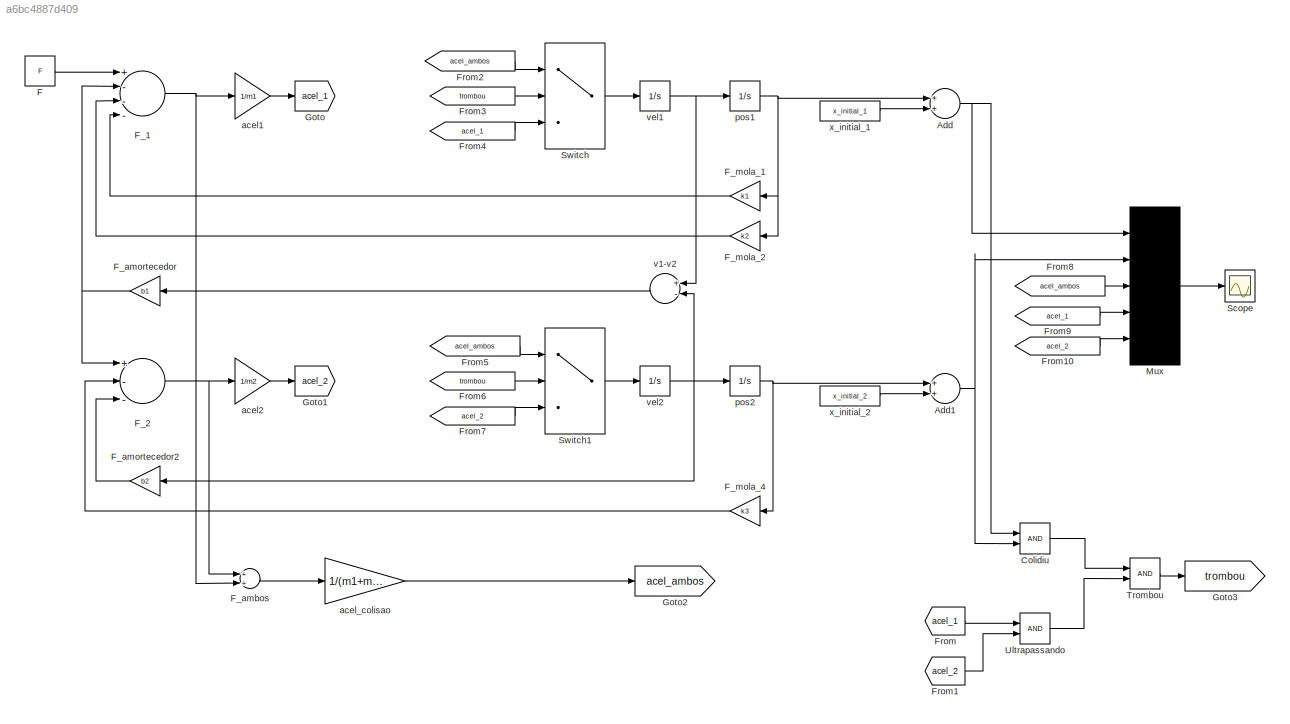
MODEL slx_a6bc4887d409
KIND model
BLOCK [Sum] Add
  InputSameDT = off
  OutDataTypeStr = Inherit: Inherit via internal rule
  Ports = [2, 1]
  SaturateOnIntegerOverflow = off
BLOCK [Sum] Add1
  InputSameDT = off
  OutDataTypeStr = Inherit: Inherit via internal rule
  Ports = [2, 1]
  SaturateOnIntegerOverflow = off
BLOCK [RelationalOperator] Colidiu
  InputSameDT = off
  OutDataTypeStr = boolean
  Ports = [2, 1]
BLOCK [Constant] F
  Value = F
BLOCK [Sum] F_1
  InputSameDT = off
  Inputs = +---
  OutDataTypeStr = Inherit: Inherit via internal rule
  Ports = [4, 1]
  SaturateOnIntegerOverflow = off
BLOCK [Sum] F_2
  InputSameDT = off
  Inputs = +--
  OutDataTypeStr = Inherit: Inherit via internal rule
  Ports = [3, 1]
  SaturateOnIntegerOverflow = off
BLOCK [Sum] F_ambos
  InputSameDT = off
  OutDataTypeStr = Inherit: Inherit via internal rule
  Ports = [2, 1]
  SaturateOnIntegerOverflow = off
BLOCK [Gain] F_amortecedor
  Gain = b1
  OutDataTypeStr = Inherit: Inherit via internal rule
  ParamDataTypeStr = Inherit: Inherit via internal rule
  SaturateOnIntegerOverflow = off
BLOCK [Gain] F_amortecedor2
  Gain = b2
  OutDataTypeStr = Inherit: Inherit via internal rule
  ParamDataTypeStr = Inherit: Inherit via internal rule
  SaturateOnIntegerOverflow = off
BLOCK [Gain] F_mola_1
  Gain = k1
  OutDataTypeStr = Inherit: Inherit via internal rule
  ParamDataTypeStr = Inherit: Inherit via internal rule
  SaturateOnIntegerOverflow = off
BLOCK [Gain] F_mola_2
  Gain = k2
  OutDataTypeStr = Inherit: Inherit via internal rule
  ParamDataTypeStr = Inherit: Inherit via internal rule
  SaturateOnIntegerOverflow = off
BLOCK [Gain] F_mola_4
  Gain = k3
  OutDataTypeStr = Inherit: Inherit via internal rule
  ParamDataTypeStr = Inherit: Inherit via internal rule
  SaturateOnIntegerOverflow = off
BLOCK [From] From
  GotoTag = acel_1
BLOCK [From] From1
  GotoTag = acel_2
BLOCK [From] From10
  GotoTag = acel_2
BLOCK [From] From2
  GotoTag = acel_ambos
BLOCK [From] From3
  GotoTag = trombou
BLOCK [From] From4
  GotoTag = acel_1
BLOCK [From] From5
  GotoTag = acel_ambos
BLOCK [From] From6
  GotoTag = trombou
BLOCK [From] From7
  GotoTag = acel_2
BLOCK [From] From8
  GotoTag = acel_ambos
BLOCK [From] From9
  GotoTag = acel_1
BLOCK [Goto] Goto
  GotoTag = acel_1
BLOCK [Goto] Goto1
  GotoTag = acel_2
BLOCK [Goto] Goto2
  GotoTag = acel_ambos
BLOCK [Goto] Goto3
  GotoTag = trombou
BLOCK [Mux] Mux
  DisplayOption = signals
  Inputs = 5
  Ports = [5, 1]
BLOCK [Scope] Scope
  DataFormat = StructureWithTime
  Floating = off
  NumInputPorts = 1
  Ports = [1]
  SampleTime = 0
  ShowLegends = off
BLOCK [Switch] Switch
  InputSameDT = off
  SaturateOnIntegerOverflow = off
BLOCK [Switch] Switch1
  InputSameDT = off
  SaturateOnIntegerOverflow = off
BLOCK [Logic] Trombou
  AllPortsSameDT = off
  OutDataTypeStr = boolean
  Ports = [2, 1]
BLOCK [RelationalOperator] Ultrapassando
  InputSameDT = off
  OutDataTypeStr = boolean
  Ports = [2, 1]
BLOCK [Gain] acel1
  Gain = 1/m1
  OutDataTypeStr = Inherit: Inherit via internal rule
  ParamDataTypeStr = Inherit: Inherit via internal rule
  SaturateOnIntegerOverflow = off
BLOCK [Gain] acel2
  Gain = 1/m2
  OutDataTypeStr = Inherit: Inherit via internal rule
  ParamDataTypeStr = Inherit: Inherit via internal rule
  SaturateOnIntegerOverflow = off
BLOCK [Gain] acel_colisao
  Gain = 1/(m1+m2)
  OutDataTypeStr = Inherit: Inherit via internal rule
  ParamDataTypeStr = Inherit: Inherit via internal rule
  SaturateOnIntegerOverflow = off
BLOCK [Integrator] pos1
  Ports = [1, 1]
BLOCK [Integrator] pos2
  Ports = [1, 1]
BLOCK [Sum] v1-v2
  InputSameDT = off
  Inputs = +-
  OutDataTypeStr = Inherit: Inherit via internal rule
  Ports = [2, 1]
  SaturateOnIntegerOverflow = off
BLOCK [Integrator] vel1
  Ports = [1, 1]
BLOCK [Integrator] vel2
  Ports = [1, 1]
BLOCK [Constant] x_initial_1
  Value = x_initial_1
BLOCK [Constant] x_initial_2
  Value = x_initial_2
NET Add1:1 -> Colidiu:2, Mux:2
NET Add:1 -> Colidiu:1, Mux:1
LINE Colidiu:1 -> Trombou:1
LINE F:1 -> F_1:1
NET F_1:1 -> F_ambos:2, acel1:1
NET F_2:1 -> F_ambos:1, acel2:1
LINE F_ambos:1 -> acel_colisao:1
LINE F_amortecedor2:1 -> F_2:3
NET F_amortecedor:1 -> F_1:2, F_2:1
LINE F_mola_1:1 -> F_1:4
LINE F_mola_2:1 -> F_1:3
LINE F_mola_4:1 -> F_2:2
LINE From10:1 -> Mux:5
LINE From1:1 -> Ultrapassando:2
LINE From2:1 -> Switch:1
LINE From3:1 -> Switch:2
LINE From4:1 -> Switch:3
LINE From5:1 -> Switch1:1
LINE From6:1 -> Switch1:2
LINE From7:1 -> Switch1:3
LINE From8:1 -> Mux:3
LINE From9:1 -> Mux:4
LINE From:1 -> Ultrapassando:1
LINE Mux:1 -> Scope:1
LINE Switch1:1 -> vel2:1
LINE Switch:1 -> vel1:1
LINE Trombou:1 -> Goto3:1
LINE Ultrapassando:1 -> Trombou:2
LINE acel1:1 -> Goto:1
LINE acel2:1 -> Goto1:1
LINE acel_colisao:1 -> Goto2:1
NET pos1:1 -> Add:1, F_mola_1:1, F_mola_2:1
NET pos2:1 -> Add1:1, F_mola_4:1
LINE v1-v2:1 -> F_amortecedor:1
NET vel1:1 -> pos1:1, v1-v2:1
NET vel2:1 -> F_amortecedor2:1, pos2:1, v1-v2:2
LINE x_initial_1:1 -> Add:2
LINE x_initial_2:1 -> Add1:2
note: NET lines group one-source signal fan-out (src -> all destinations, sorted); 1:1 wires keep LINE
